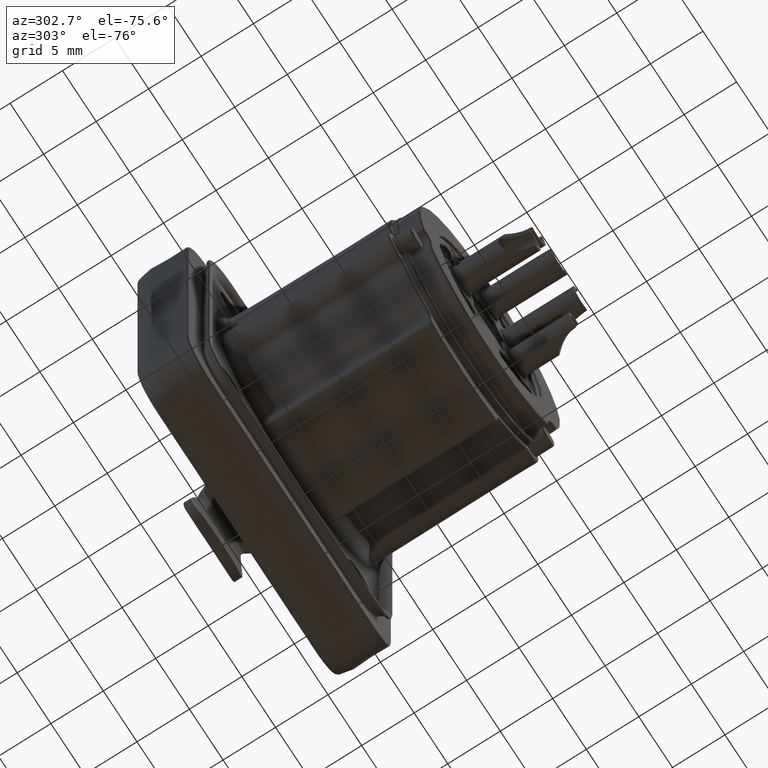
[diagram: clean part render]
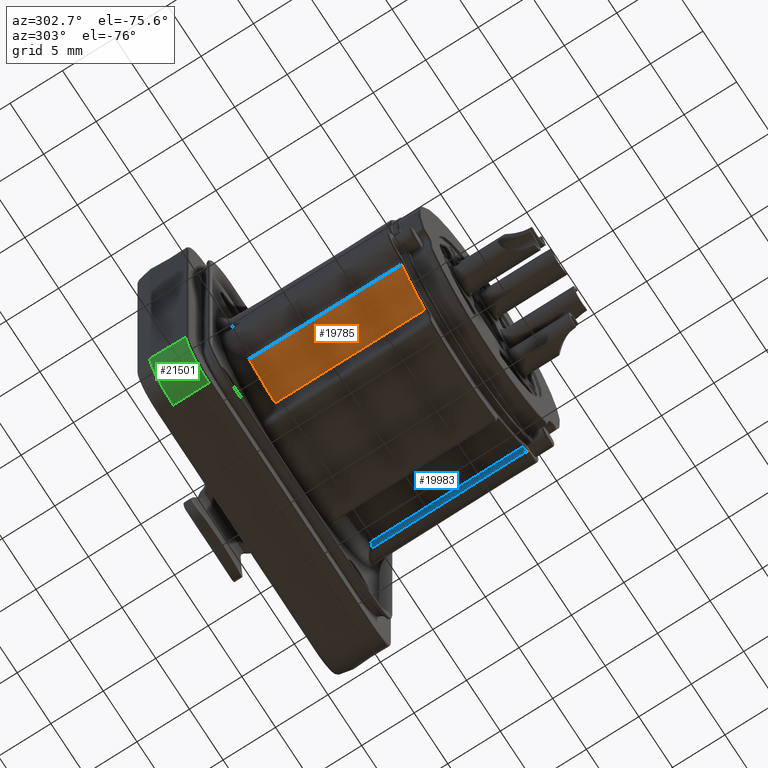
[diagram: same view with three faces highlighted in distinct colors, each labeled with its STEP entity id]
A machine part, auxiliary view with three faces highlighted in distinct colors.
Their STEP definitions:

[orange] entity #19785 — the highlighted conical surface has half-angle 0.25 deg.
#2184=CARTESIAN_POINT('',(3.654105111532E-5,-1.740087266186E1,
7.499999991098E-1));
#2185=DIRECTION('',(0.E0,-1.E0,0.E0));
#2186=DIRECTION('',(-8.207676516647E-1,0.E0,-5.712621657179E-1));
#2187=AXIS2_PLACEMENT_3D('',#2184,#2185,#2186);
#2189=CARTESIAN_POINT('',(-5.497568270194E0,-1.740087266432E1,
-8.697474329359E0));
#2190=CARTESIAN_POINT('',(-5.497859078825E0,-1.581989710382E1,
-8.705286416752E0));
#2191=CARTESIAN_POINT('',(-5.498440358702E0,-1.265429600807E1,
-8.720924919065E0));
#2192=CARTESIAN_POINT('',(-5.499311255187E0,-7.894955942931E0,
-8.744425598099E0));
#2193=CARTESIAN_POINT('',(-5.499891184908E0,-4.714747309056E0,
-8.760121438528E0));
#2194=CARTESIAN_POINT('',(-5.500180974358E0,-3.122816092904E0,
-8.767976533331E0));
#2196=CARTESIAN_POINT('',(-5.500180974358E0,-3.122816092904E0,
-8.767976533331E0));
#2197=CARTESIAN_POINT('',(-5.846288246311E0,-3.108285734458E0,
-8.568039512469E0));
#2198=CARTESIAN_POINT('',(-6.516860043775E0,-3.076531798986E0,
-8.130289782591E0));
#2199=CARTESIAN_POINT('',(-7.445740824047E0,-3.021475178428E0,
-7.367614952689E0));
#2200=CARTESIAN_POINT('',(-8.286448488931E0,-2.959745367633E0,
-6.507813106973E0));
#2201=CARTESIAN_POINT('',(-8.781305218960E0,-2.914703708969E0,
-5.876661165706E0));
#2202=CARTESIAN_POINT('',(-9.010847621879E0,-2.891359763819E0,
-5.548447560577E0));
#2204=CARTESIAN_POINT('',(-8.971461876386E0,-1.740087266010E1,
-5.494249034515E0));
#2205=CARTESIAN_POINT('',(-8.975818626793E0,-1.579448685290E1,
-5.500259138512E0));
#2206=CARTESIAN_POINT('',(-8.984545110906E0,-1.257786041653E1,
-5.512287266259E0));
#2207=CARTESIAN_POINT('',(-8.997673717632E0,-7.741359304430E0,
-5.530353352571E0));
#2208=CARTESIAN_POINT('',(-9.006452011412E0,-4.509311554490E0,
-5.542413469226E0));
#2209=CARTESIAN_POINT('',(-9.010847621879E0,-2.891359763819E0,
-5.548447560577E0));
#2515=CARTESIAN_POINT('',(-8.971461876386E0,-1.740087266010E1,
-5.494249034515E0));
#17404=VERTEX_POINT('',#2196);
#17405=VERTEX_POINT('',#2202);
#17448=VERTEX_POINT('',#2515);
#17449=CARTESIAN_POINT('',(-5.497568269720E0,-1.740087266186E1,
-8.697474329647E0));
#17450=VERTEX_POINT('',#17449);
#19771=CARTESIAN_POINT('',(3.654105111666E-5,-1.014611621281E1,
7.499999991098E-1));
#19772=DIRECTION('',(0.E0,1.E0,0.E0));
#19773=DIRECTION('',(1.E0,0.E0,0.E0));
#19774=AXIS2_PLACEMENT_3D('',#19771,#19772,#19773);
#19775=CONICAL_SURFACE('',#19774,1.096227396173E1,2.5E-1);
#19776=ORIENTED_EDGE('',*,*,#19765,.T.);
#19778=ORIENTED_EDGE('',*,*,#19777,.T.);
#19780=ORIENTED_EDGE('',*,*,#19779,.T.);
#19782=ORIENTED_EDGE('',*,*,#19781,.F.);
#19783=EDGE_LOOP('',(#19776,#19778,#19780,#19782));
#19784=FACE_OUTER_BOUND('',#19783,.F.);
#19785=ADVANCED_FACE('',(#19784),#19775,.T.);
#2188=CIRCLE('',#2187,1.093061891422E1);
#2195=B_SPLINE_CURVE_WITH_KNOTS('',3,(#2189,#2190,#2191,#2192,#2193,#2194),
.UNSPECIFIED.,.F.,.F.,(4,1,1,4),(0.E0,3.333333333333E-1,6.666666666667E-1,1.E0),
.UNSPECIFIED.);
#2203=B_SPLINE_CURVE_WITH_KNOTS('',3,(#2196,#2197,#2198,#2199,#2200,#2201,
#2202),.UNSPECIFIED.,.F.,.F.,(4,1,1,1,4),(0.E0,2.5E-1,5.E-1,7.5E-1,1.E0),
.UNSPECIFIED.);
#2210=B_SPLINE_CURVE_WITH_KNOTS('',3,(#2204,#2205,#2206,#2207,#2208,#2209),
.UNSPECIFIED.,.F.,.F.,(4,1,1,4),(0.E0,3.333333333333E-1,6.666666666667E-1,1.E0),
.UNSPECIFIED.);
#19765=EDGE_CURVE('',#17448,#17450,#2188,.T.);
#19777=EDGE_CURVE('',#17450,#17404,#2195,.T.);
#19779=EDGE_CURVE('',#17404,#17405,#2203,.T.);
#19781=EDGE_CURVE('',#17448,#17405,#2210,.T.);

[blue] entity #19983 — the highlighted face is a freeform B-spline surface patch.
#2345=CARTESIAN_POINT('',(8.970926458656E0,-1.740087266013E1,
-5.495123212983E0));
#2346=CARTESIAN_POINT('',(8.975282623400E0,-1.579448685330E1,
-5.501133741483E0));
#2347=CARTESIAN_POINT('',(8.984007935600E0,-1.257786041740E1,
-5.513162719241E0));
#2348=CARTESIAN_POINT('',(8.997134781697E0,-7.741359305936E0,
-5.531230084974E0));
#2349=CARTESIAN_POINT('',(9.005911900493E0,-4.509311555145E0,
-5.543291056632E0));
#2350=CARTESIAN_POINT('',(9.010306922962E0,-2.891359763825E0,
-5.549325576278E0));
#2367=CARTESIAN_POINT('',(8.970926458656E0,-1.740087266013E1,
-5.495123212983E0));
#2368=CARTESIAN_POINT('',(9.005552247857E0,-1.740089276293E1,
-5.445387026237E0));
#2369=CARTESIAN_POINT('',(9.083869873348E0,-1.740092342162E1,
-5.352219277697E0));
#2370=CARTESIAN_POINT('',(9.224709179207E0,-1.740093887865E1,
-5.235998844372E0));
#2371=CARTESIAN_POINT('',(9.384243922226E0,-1.740092342166E1,
-5.147166176829E0));
#2372=CARTESIAN_POINT('',(9.499537725478E0,-1.740089276279E1,
-5.108163277609E0));
#2373=CARTESIAN_POINT('',(9.558469325375E0,-1.740087266010E1,
-5.094031630559E0));
#2375=CARTESIAN_POINT('',(9.589790334090E0,-2.682984623520E0,
-5.152494764748E0));
#2376=CARTESIAN_POINT('',(9.525971476640E0,-2.716544412757E0,
-5.168165829066E0));
#2377=CARTESIAN_POINT('',(9.404647923495E0,-2.775447930897E0,
-5.211334378187E0));
#2378=CARTESIAN_POINT('',(9.246594752129E0,-2.838547129604E0,
-5.303887622665E0));
#2379=CARTESIAN_POINT('',(9.114329289512E0,-2.877655763569E0,
-5.416871880126E0));
#2380=CARTESIAN_POINT('',(9.042058480040E0,-2.889140339133E0,
-5.503925717157E0));
#2381=CARTESIAN_POINT('',(9.010306922962E0,-2.891359763825E0,
-5.549325576278E0));
#2410=CARTESIAN_POINT('',(9.589790334090E0,-2.682984623520E0,
-5.152494764748E0));
#2412=CARTESIAN_POINT('',(9.558469325375E0,-1.740087266010E1,
-5.094031630559E0));
#2413=CARTESIAN_POINT('',(9.561914625031E0,-1.577234999718E1,
-5.100512764024E0));
#2414=CARTESIAN_POINT('',(9.568828562545E0,-1.251077245431E1,
-5.113484861894E0));
#2415=CARTESIAN_POINT('',(9.579269102940E0,-7.604804142270E0,
-5.132972571032E0));
#2416=CARTESIAN_POINT('',(9.586275607479E0,-4.325101276564E0,
-5.145984075684E0));
#2417=CARTESIAN_POINT('',(9.589790334090E0,-2.682984623520E0,
-5.152494764748E0));
#17419=VERTEX_POINT('',#2410);
#17420=VERTEX_POINT('',#2381);
#17425=CARTESIAN_POINT('',(8.970926458798E0,-1.740087266186E1,
-5.495123212772E0));
#17427=VERTEX_POINT('',#17425);
#17430=VERTEX_POINT('',#2373);
#19946=CARTESIAN_POINT('',(8.970925605590E0,-1.740123904819E1,
-5.495121640262E0));
#19947=CARTESIAN_POINT('',(8.973184373598E0,-1.643126923450E1,
-5.499284680967E0));
#19948=CARTESIAN_POINT('',(8.978874010130E0,-1.399010856668E1,
-5.509755235587E0));
#19949=CARTESIAN_POINT('',(8.988261746952E0,-9.970885061994E0,
-5.526966724229E0));
#19950=CARTESIAN_POINT('',(8.997479498664E0,-6.034775424271E0,
-5.543788924080E0));
#19951=CARTESIAN_POINT('',(9.003263943918E0,-3.569856648623E0,
-5.554306873758E0));
#19952=CARTESIAN_POINT('',(9.005346672059E0,-2.683000721913E0,
-5.558088999956E0));
#19953=CARTESIAN_POINT('',(9.112586216964E0,-1.740082731268E1,
-5.291634608499E0));
#19954=CARTESIAN_POINT('',(9.114740118575E0,-1.643085719815E1,
-5.295724645463E0));
#19955=CARTESIAN_POINT('',(9.120166615050E0,-1.398969577590E1,
-5.306012315526E0));
#19956=CARTESIAN_POINT('',(9.129124316248E0,-9.970471040116E0,
-5.322926158394E0));
#19957=CARTESIAN_POINT('',(9.137924797579E0,-6.034360210011E0,
-5.339461019621E0));
#19958=CARTESIAN_POINT('',(9.143449867047E0,-3.569440694239E0,
-5.349801086304E0));
#19959=CARTESIAN_POINT('',(9.145439522230E0,-2.682584502082E0,
-5.353519475024E0));
#19960=CARTESIAN_POINT('',(9.317361897075E0,-1.740082731282E1,
-5.151842651392E0));
#19961=CARTESIAN_POINT('',(9.319443757791E0,-1.643085682189E1,
-5.155827158511E0));
#19962=CARTESIAN_POINT('',(9.324689375130E0,-1.398969445568E1,
-5.165850306821E0));
#19963=CARTESIAN_POINT('',(9.333351036857E0,-9.970468179542E0,
-5.182333008028E0));
#19964=CARTESIAN_POINT('',(9.341863742890E0,-6.034355857518E0,
-5.198450901199E0));
#19965=CARTESIAN_POINT('',(9.347209672266E0,-3.569435415698E0,
-5.208532459519E0));
#19966=CARTESIAN_POINT('',(9.349135012715E0,-2.682578891411E0,
-5.212158173519E0));
#19967=CARTESIAN_POINT('',(9.558468550211E0,-1.740123904860E1,
-5.094030172426E0));
#19968=CARTESIAN_POINT('',(9.560520618286E0,-1.643126815492E1,
-5.097890426608E0));
#19969=CARTESIAN_POINT('',(9.565691275900E0,-1.399010477871E1,
-5.107602014689E0));
#19970=CARTESIAN_POINT('',(9.574229615462E0,-9.970876854425E0,
-5.123576470491E0));
#19971=CARTESIAN_POINT('',(9.582621681494E0,-6.034762936087E0,
-5.139202304448E0));
#19972=CARTESIAN_POINT('',(9.587892137503E0,-3.569841503417E0,
-5.148978541222E0));
#19973=CARTESIAN_POINT('',(9.589790333635E0,-2.682984623761E0,
-5.152494764857E0));
#19974=(BOUNDED_SURFACE()B_SPLINE_SURFACE(3,3,((#19946,#19947,#19948,#19949,
#19950,#19951,#19952),(#19953,#19954,#19955,#19956,#19957,#19958,#19959),
(#19960,#19961,#19962,#19963,#19964,#19965,#19966),(#19967,#19968,#19969,#19970,
#19971,#19972,#19973)),.UNSPECIFIED.,.F.,.F.,.F.)B_SPLINE_SURFACE_WITH_KNOTS((4,
4),(4,1,1,1,4),(0.E0,1.E0),(3.861648542121E-1,4.267680368576E-1,
4.883524588229E-1,5.544105665819E-1,5.915345783964E-1),.UNSPECIFIED.)GEOMETRIC_REPRESENTATION_ITEM()RATIONAL_B_SPLINE_SURFACE(((1.033804702902E0,
1.033804702902E0,1.033804702902E0,1.033804702902E0,1.033804702902E0,
1.033804702902E0,1.033804702902E0),(9.887317656993E-1,9.887317656993E-1,
9.887317656993E-1,9.887317656993E-1,9.887317656993E-1,9.887317656993E-1,
9.887317656993E-1),(9.887317656993E-1,9.887317656993E-1,9.887317656993E-1,
9.887317656993E-1,9.887317656993E-1,9.887317656993E-1,9.887317656993E-1),(
1.033804702902E0,1.033804702902E0,1.033804702902E0,1.033804702902E0,
1.033804702902E0,1.033804702902E0,1.033804702902E0)))REPRESENTATION_ITEM('')SURFACE());
#19975=ORIENTED_EDGE('',*,*,#19562,.T.);
#19977=ORIENTED_EDGE('',*,*,#19976,.T.);
#19979=ORIENTED_EDGE('',*,*,#19978,.T.);
#19980=ORIENTED_EDGE('',*,*,#19938,.F.);
#19981=EDGE_LOOP('',(#19975,#19977,#19979,#19980));
#19982=FACE_OUTER_BOUND('',#19981,.F.);
#19983=ADVANCED_FACE('',(#19982),#19974,.F.);
#2351=B_SPLINE_CURVE_WITH_KNOTS('',3,(#2345,#2346,#2347,#2348,#2349,#2350),
.UNSPECIFIED.,.F.,.F.,(4,1,1,4),(0.E0,3.333333333333E-1,6.666666666667E-1,1.E0),
.UNSPECIFIED.);
#2374=B_SPLINE_CURVE_WITH_KNOTS('',3,(#2367,#2368,#2369,#2370,#2371,#2372,
#2373),.UNSPECIFIED.,.F.,.F.,(4,1,1,1,4),(0.E0,2.5E-1,5.E-1,7.5E-1,1.E0),
.UNSPECIFIED.);
#2382=B_SPLINE_CURVE_WITH_KNOTS('',3,(#2375,#2376,#2377,#2378,#2379,#2380,
#2381),.UNSPECIFIED.,.F.,.F.,(4,1,1,1,4),(0.E0,2.5E-1,5.E-1,7.5E-1,1.E0),
.UNSPECIFIED.);
#2418=B_SPLINE_CURVE_WITH_KNOTS('',3,(#2412,#2413,#2414,#2415,#2416,#2417),
.UNSPECIFIED.,.F.,.F.,(4,1,1,4),(0.E0,3.333333333333E-1,6.666666666667E-1,1.E0),
.UNSPECIFIED.);
#19562=EDGE_CURVE('',#17427,#17430,#2374,.T.);
#19938=EDGE_CURVE('',#17427,#17420,#2351,.T.);
#19976=EDGE_CURVE('',#17430,#17419,#2418,.T.);
#19978=EDGE_CURVE('',#17419,#17420,#2382,.T.);

[green] entity #21501 — the highlighted conical surface has half-angle 1 deg.
#3319=DIRECTION('',(-1.745240643728E-2,9.998476951564E-1,-3.257978101801E-10));
#3320=VECTOR('',#3319,3.404008928344E0);
#3321=CARTESIAN_POINT('',(-1.514059185267E1,-8.034904812969E-1,
-1.419999999889E1));
#3322=LINE('',#3321,#3320);
#3337=CARTESIAN_POINT('',(-1.17E1,-8.034904812875E-1,-1.42E1));
#3338=DIRECTION('',(0.E0,1.E0,0.E0));
#3339=DIRECTION('',(0.E0,0.E0,-1.E0));
#3340=AXIS2_PLACEMENT_3D('',#3337,#3338,#3339);
#3342=DIRECTION('',(-3.701946123055E-10,9.998476951564E-1,-1.745240643728E-2));
#3343=VECTOR('',#3342,3.404008928347E0);
#3344=CARTESIAN_POINT('',(-1.169999999874E1,-8.034904812994E-1,
-1.764059185267E1));
#3345=LINE('',#3344,#3343);
#3346=CARTESIAN_POINT('',(-1.17E1,2.6E0,-1.42E1));
#3347=DIRECTION('',(0.E0,1.E0,0.E0));
#3348=DIRECTION('',(0.E0,0.E0,-1.E0));
#3349=AXIS2_PLACEMENT_3D('',#3346,#3347,#3348);
#14364=CARTESIAN_POINT('',(-1.17E1,2.6E0,-1.77E1));
#14365=VERTEX_POINT('',#14364);
#14366=CARTESIAN_POINT('',(-1.52E1,2.6E0,-1.42E1));
#14367=VERTEX_POINT('',#14366);
#14921=CARTESIAN_POINT('',(-1.169999999874E1,-8.034904812994E-1,
-1.764059185267E1));
#14922=VERTEX_POINT('',#14921);
#14925=CARTESIAN_POINT('',(-1.514059185267E1,-8.034904812875E-1,-1.42E1));
#14926=VERTEX_POINT('',#14925);
#21488=CARTESIAN_POINT('',(-1.17E1,8.982547593563E-1,-1.42E1));
#21489=DIRECTION('',(0.E0,1.E0,0.E0));
#21490=DIRECTION('',(1.E0,0.E0,0.E0));
#21491=AXIS2_PLACEMENT_3D('',#21488,#21489,#21490);
#21492=CONICAL_SURFACE('',#21491,3.470295926333E0,1.E0);
#21493=ORIENTED_EDGE('',*,*,#21479,.F.);
#21495=ORIENTED_EDGE('',*,*,#21494,.T.);
#21497=ORIENTED_EDGE('',*,*,#21496,.T.);
#21498=ORIENTED_EDGE('',*,*,#21453,.F.);
#21499=EDGE_LOOP('',(#21493,#21495,#21497,#21498));
#21500=FACE_OUTER_BOUND('',#21499,.F.);
#21501=ADVANCED_FACE('',(#21500),#21492,.T.);
#3341=CIRCLE('',#3340,3.440591852667E0);
#3350=CIRCLE('',#3349,3.5E0);
#21453=EDGE_CURVE('',#14926,#14367,#3322,.T.);
#21479=EDGE_CURVE('',#14922,#14926,#3341,.T.);
#21494=EDGE_CURVE('',#14922,#14365,#3345,.T.);
#21496=EDGE_CURVE('',#14365,#14367,#3350,.T.);